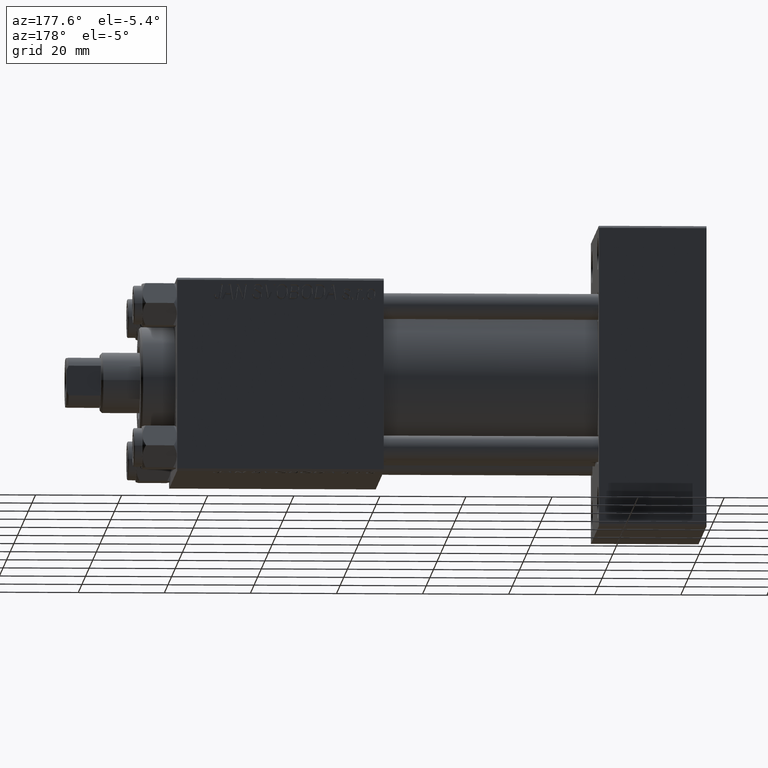
[diagram: clean part render]
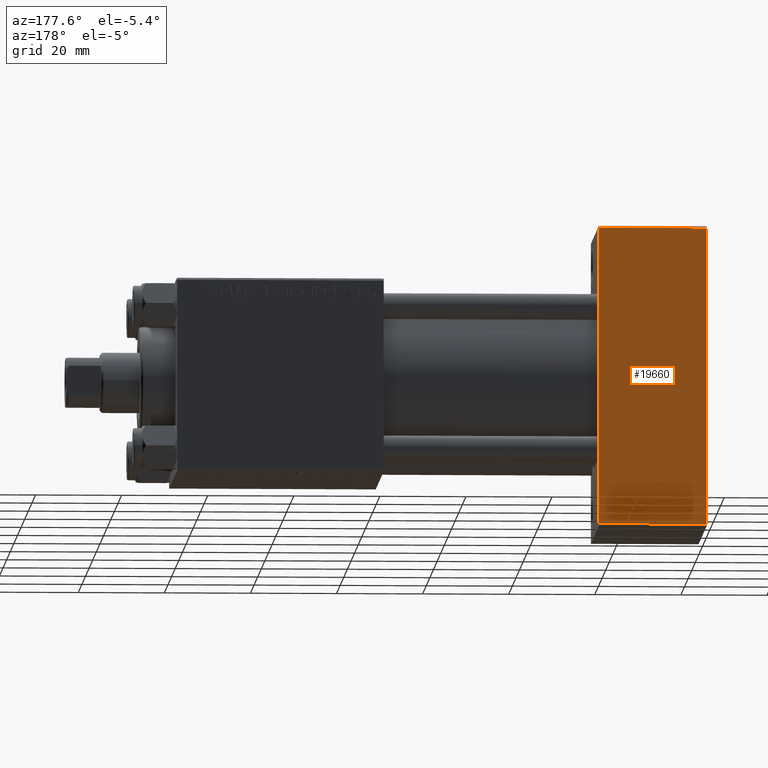
[diagram: same view with one face highlighted and labeled with its STEP entity id]
A machine part, auxiliary view. The second image highlights one B-rep face of the part: STEP entity #19660.
In plain terms, the highlighted planar face has unit normal (0, 1, 0).
Its self-contained STEP definition (entity closure, byte-faithful):
#2875 = CARTESIAN_POINT ( 'NONE',  ( 25.00000000000000000, 22.50000000000000355, 35.00000000000000711 ) ) ;
#4497 = VECTOR ( 'NONE', #25629, 1000.000000000000000 ) ;
#5268 = VERTEX_POINT ( 'NONE', #6670 ) ;
#6670 = CARTESIAN_POINT ( 'NONE',  ( 0.000000000000000000, 22.50000000000000355, -34.49999999999999289 ) ) ;
#7335 = PLANE ( 'NONE',  #15801 ) ;
#8325 = LINE ( 'NONE', #39890, #28941 ) ;
#9250 = DIRECTION ( 'NONE',  ( -1.000000000000000000, 0.000000000000000000, 0.000000000000000000 ) ) ;
#14882 = ORIENTED_EDGE ( 'NONE', *, *, #44147, .T. ) ;
#15801 = AXIS2_PLACEMENT_3D ( 'NONE', #41443, #34393, #18442 ) ;
#17289 = CARTESIAN_POINT ( 'NONE',  ( 0.000000000000000000, 22.50000000000000355, 35.00000000000000711 ) ) ;
#18442 = DIRECTION ( 'NONE',  ( 0.000000000000000000, -0.000000000000000000, 1.000000000000000000 ) ) ;
#19660 = ADVANCED_FACE ( 'NONE', ( #42193 ), #7335, .T. ) ;
#20181 = DIRECTION ( 'NONE',  ( 1.000000000000000000, 0.000000000000000000, 0.000000000000000000 ) ) ;
#21321 = LINE ( 'NONE', #17289, #28700 ) ;
#21839 = ORIENTED_EDGE ( 'NONE', *, *, #35689, .T. ) ;
#24912 = CARTESIAN_POINT ( 'NONE',  ( 25.00000000000000000, 22.50000000000000355, -34.49999999999999289 ) ) ;
#25401 = EDGE_CURVE ( 'NONE', #30459, #46168, #8325, .T. ) ;
#25629 = DIRECTION ( 'NONE',  ( 0.000000000000000000, 0.000000000000000000, -1.000000000000000000 ) ) ;
#26464 = CARTESIAN_POINT ( 'NONE',  ( 25.00000000000000000, 22.50000000000000355, 34.49999999999999289 ) ) ;
#28700 = VECTOR ( 'NONE', #44336, 1000.000000000000000 ) ;
#28941 = VECTOR ( 'NONE', #20181, 1000.000000000000000 ) ;
#30000 = VECTOR ( 'NONE', #9250, 1000.000000000000000 ) ;
#30459 = VERTEX_POINT ( 'NONE', #42010 ) ;
#34393 = DIRECTION ( 'NONE',  ( -0.000000000000000000, 1.000000000000000000, 0.000000000000000000 ) ) ;
#35689 = EDGE_CURVE ( 'NONE', #40503, #5268, #43866, .T. ) ;
#38557 = CARTESIAN_POINT ( 'NONE',  ( 25.00000000000000000, 22.50000000000000355, -34.49999999999999289 ) ) ;
#39890 = CARTESIAN_POINT ( 'NONE',  ( 25.00000000000000000, 22.50000000000000355, 34.49999999999999289 ) ) ;
#39894 = ORIENTED_EDGE ( 'NONE', *, *, #44005, .F. ) ;
#40503 = VERTEX_POINT ( 'NONE', #38557 ) ;
#41443 = CARTESIAN_POINT ( 'NONE',  ( 25.00000000000000000, 22.50000000000000355, 35.00000000000000711 ) ) ;
#41542 = LINE ( 'NONE', #2875, #4497 ) ;
#42010 = CARTESIAN_POINT ( 'NONE',  ( 0.000000000000000000, 22.50000000000000355, 34.49999999999999289 ) ) ;
#42193 = FACE_OUTER_BOUND ( 'NONE', #49244, .T. ) ;
#43866 = LINE ( 'NONE', #24912, #30000 ) ;
#44005 = EDGE_CURVE ( 'NONE', #30459, #5268, #21321, .T. ) ;
#44147 = EDGE_CURVE ( 'NONE', #46168, #40503, #41542, .T. ) ;
#44336 = DIRECTION ( 'NONE',  ( 0.000000000000000000, 0.000000000000000000, -1.000000000000000000 ) ) ;
#46168 = VERTEX_POINT ( 'NONE', #26464 ) ;
#49244 = EDGE_LOOP ( 'NONE', ( #14882, #21839, #39894, #49503 ) ) ;
#49503 = ORIENTED_EDGE ( 'NONE', *, *, #25401, .T. ) ;